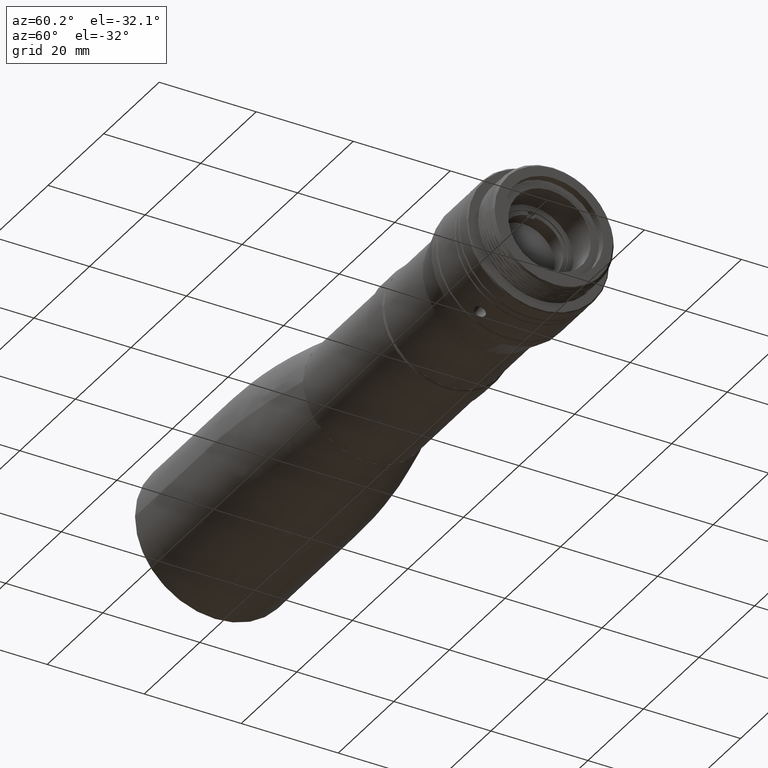
[diagram: clean part render]
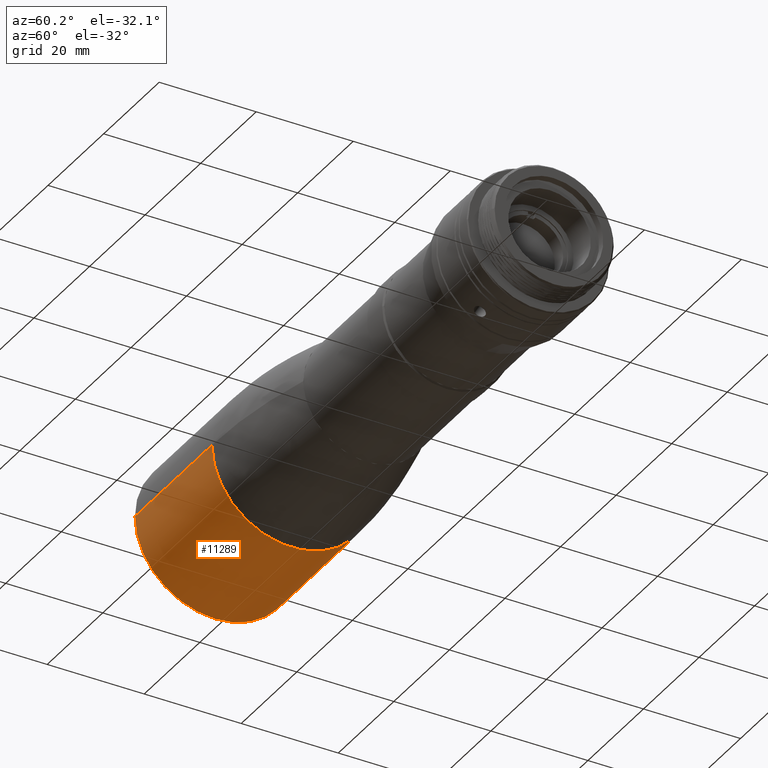
[diagram: same view with one face highlighted and labeled with its STEP entity id]
A machine part, auxiliary view. The second image highlights one B-rep face of the part: STEP entity #11289.
In plain terms, the highlighted cylindrical surface (partial cylindrical patch) has radius 16.5 mm, axis along (1, 0, 0).
Its self-contained STEP definition (entity closure, byte-faithful):
#317 = DIRECTION ( 'NONE',  ( -4.205390244792259832E-16, 1.000000000000000000, 0.000000000000000000 ) ) ;
#1596 = CARTESIAN_POINT ( 'NONE',  ( -26.80000000002000249, -16.49999999965814013, -7.418881125470027326E-05 ) ) ;
#3123 = CARTESIAN_POINT ( 'NONE',  ( -54.50000000000000711, 16.50000000000000000, 0.000000000000000000 ) ) ;
#3228 = DIRECTION ( 'NONE',  ( 0.000000000000000000, 0.000000000000000000, -1.000000000000000000 ) ) ;
#3244 = DIRECTION ( 'NONE',  ( 0.000000000000000000, 0.000000000000000000, 1.000000000000000000 ) ) ;
#3321 = ORIENTED_EDGE ( 'NONE', *, *, #13782, .T. ) ;
#4364 = EDGE_LOOP ( 'NONE', ( #11865, #3321, #15078, #16070, #12924 ) ) ;
#4601 = CARTESIAN_POINT ( 'NONE',  ( -54.50000000000000000, 0.000000000000000000, 0.000000000000000000 ) ) ;
#4693 = CYLINDRICAL_SURFACE ( 'NONE', #10513, 16.50000000000000000 ) ;
#4995 = DIRECTION ( 'NONE',  ( 1.000000000000000000, 0.000000000000000000, 0.000000000000000000 ) ) ;
#5045 = DIRECTION ( 'NONE',  ( 1.000000000000000000, 2.102695122396129669E-16, 0.000000000000000000 ) ) ;
#5795 = LINE ( 'NONE', #3123, #11056 ) ;
#6091 = DIRECTION ( 'NONE',  ( 1.000000000000000000, 2.102695122396129669E-16, 0.000000000000000000 ) ) ;
#6150 = CARTESIAN_POINT ( 'NONE',  ( -54.50000000000000711, 8.872571318680001538E-14, 9.947598300640999968E-14 ) ) ;
#6473 = LINE ( 'NONE', #12262, #15641 ) ;
#6776 = CARTESIAN_POINT ( 'NONE',  ( -26.79999958350422418, 16.49999999965814368, 7.418880885254002899E-05 ) ) ;
#7044 = CARTESIAN_POINT ( 'NONE',  ( -54.50000000000000711, -16.50000000000001421, 2.020667218593023448E-15 ) ) ;
#7702 = VERTEX_POINT ( 'NONE', #18518 ) ;
#7773 = AXIS2_PLACEMENT_3D ( 'NONE', #17616, #12085, #3244 ) ;
#9083 = DIRECTION ( 'NONE',  ( 1.000000000000000000, 2.102695122396129669E-16, 0.000000000000000000 ) ) ;
#9291 = CIRCLE ( 'NONE', #7773, 16.50000000000000000 ) ;
#9501 = EDGE_CURVE ( 'NONE', #7702, #17848, #5795, .T. ) ;
#9579 = EDGE_CURVE ( 'NONE', #15699, #7702, #11662, .T. ) ;
#10513 = AXIS2_PLACEMENT_3D ( 'NONE', #4601, #9083, #317 ) ;
#10531 = DIRECTION ( 'NONE',  ( 0.000000000000000000, 0.000000000000000000, -1.000000000000000000 ) ) ;
#11056 = VECTOR ( 'NONE', #6091, 1000.000000000000000 ) ;
#11289 = ADVANCED_FACE ( 'NONE', ( #14581 ), #4693, .T. ) ;
#11662 = CIRCLE ( 'NONE', #14083, 16.50000000000010658 ) ;
#11865 = ORIENTED_EDGE ( 'NONE', *, *, #14659, .F. ) ;
#12085 = DIRECTION ( 'NONE',  ( 1.000000000000000000, 0.000000000000000000, 0.000000000000000000 ) ) ;
#12088 = CARTESIAN_POINT ( 'NONE',  ( -54.50000000000000711, 8.872571318680001538E-14, -16.50000000000000000 ) ) ;
#12262 = CARTESIAN_POINT ( 'NONE',  ( -54.49999999999999289, -16.50000000000000000, 2.020667218593133100E-15 ) ) ;
#12924 = ORIENTED_EDGE ( 'NONE', *, *, #17990, .F. ) ;
#13782 = EDGE_CURVE ( 'NONE', #16838, #15699, #18696, .T. ) ;
#14083 = AXIS2_PLACEMENT_3D ( 'NONE', #16068, #16152, #3228 ) ;
#14581 = FACE_OUTER_BOUND ( 'NONE', #4364, .T. ) ;
#14659 = EDGE_CURVE ( 'NONE', #16838, #16415, #6473, .T. ) ;
#15078 = ORIENTED_EDGE ( 'NONE', *, *, #9579, .T. ) ;
#15641 = VECTOR ( 'NONE', #5045, 1000.000000000000000 ) ;
#15699 = VERTEX_POINT ( 'NONE', #12088 ) ;
#16068 = CARTESIAN_POINT ( 'NONE',  ( -54.50000000000000711, 8.872571318680001538E-14, 9.947598300640999968E-14 ) ) ;
#16070 = ORIENTED_EDGE ( 'NONE', *, *, #9501, .T. ) ;
#16152 = DIRECTION ( 'NONE',  ( 1.000000000000000000, 0.000000000000000000, 0.000000000000000000 ) ) ;
#16415 = VERTEX_POINT ( 'NONE', #1596 ) ;
#16573 = AXIS2_PLACEMENT_3D ( 'NONE', #6150, #4995, #10531 ) ;
#16838 = VERTEX_POINT ( 'NONE', #7044 ) ;
#17616 = CARTESIAN_POINT ( 'NONE',  ( -26.80000000001999894, 0.000000000000000000, 0.000000000000000000 ) ) ;
#17848 = VERTEX_POINT ( 'NONE', #6776 ) ;
#17990 = EDGE_CURVE ( 'NONE', #16415, #17848, #9291, .T. ) ;
#18518 = CARTESIAN_POINT ( 'NONE',  ( -54.50000000000000711, 16.50000000000019540, -1.146313502899282780E-27 ) ) ;
#18696 = CIRCLE ( 'NONE', #16573, 16.50000000000010658 ) ;